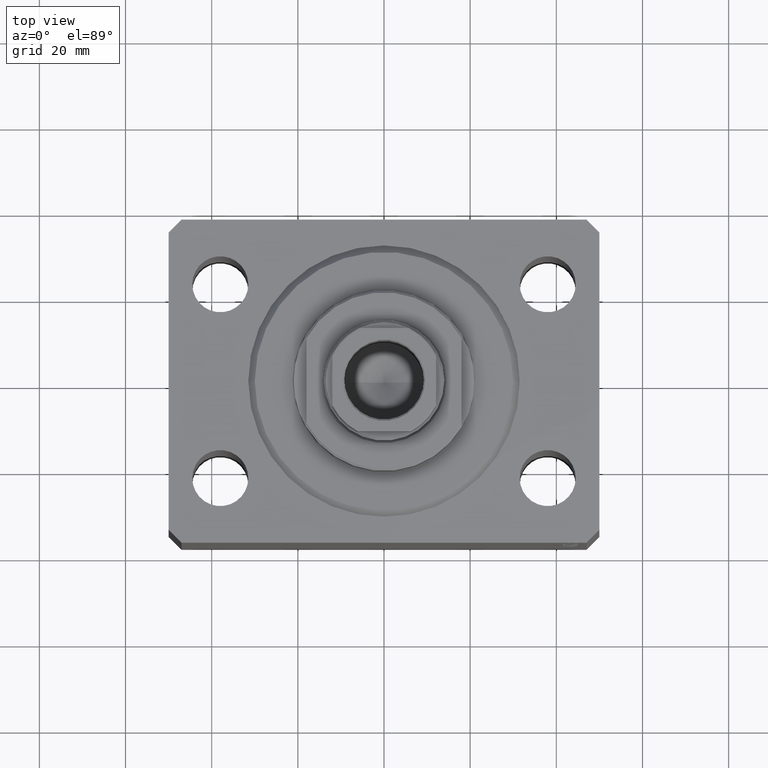
[diagram: clean part render]
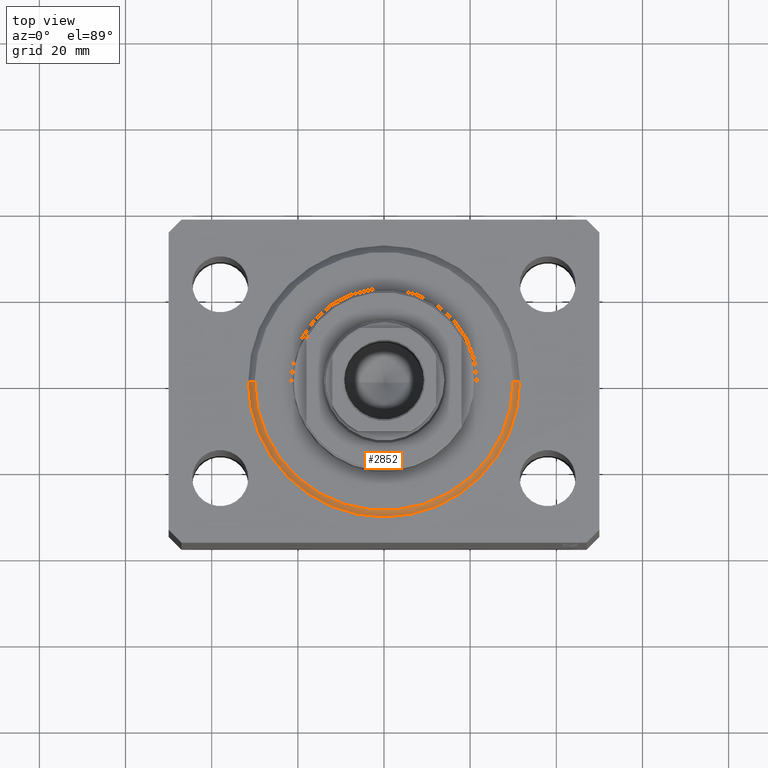
[diagram: same view with one face highlighted and labeled with its STEP entity id]
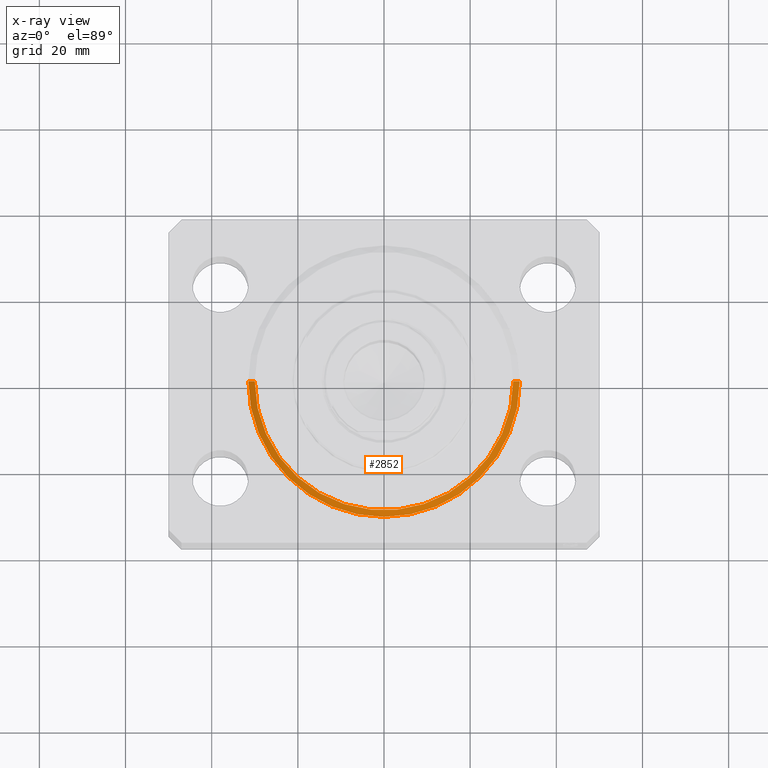
[diagram: x-ray of the same camera — body ghosted, the highlighted face saturated]
A machine part, top view. The second image highlights one B-rep face of the part: STEP entity #2852.
The next image is the same camera in x-ray: the body ghosted, the highlighted face saturated — about 0% of this face is hidden behind the body in this view.
In plain terms, the highlighted conical surface has half-angle 45 deg.
Its self-contained STEP definition (entity closure, byte-faithful):
#190 = CARTESIAN_POINT ( 'NONE',  ( -31.50000000000000000, 0.000000000000000000, 1.499999999999980460 ) ) ;
#1528 = VECTOR ( 'NONE', #28099, 1000.000000000000114 ) ;
#2852 = ADVANCED_FACE ( 'NONE', ( #43012 ), #21048, .T. ) ;
#5147 = DIRECTION ( 'NONE',  ( 1.000000000000000000, 0.000000000000000000, 0.000000000000000000 ) ) ;
#7482 = EDGE_CURVE ( 'NONE', #31337, #40910, #17456, .T. ) ;
#8334 = VECTOR ( 'NONE', #20802, 1000.000000000000114 ) ;
#8439 = CARTESIAN_POINT ( 'NONE',  ( 30.00000000000002132, 0.000000000000000000, 0.000000000000000000 ) ) ;
#9012 = CARTESIAN_POINT ( 'NONE',  ( -30.00000000000002132, 3.765788907378112117E-15, 0.000000000000000000 ) ) ;
#14193 = EDGE_LOOP ( 'NONE', ( #44306, #27255, #36139, #29661 ) ) ;
#14994 = EDGE_CURVE ( 'NONE', #19182, #22671, #31290, .T. ) ;
#15089 = CARTESIAN_POINT ( 'NONE',  ( 0.000000000000000000, 0.000000000000000000, 1.499999999999980460 ) ) ;
#17456 = CIRCLE ( 'NONE', #22479, 31.50000000000000000 ) ;
#18319 = EDGE_CURVE ( 'NONE', #19182, #40910, #37911, .T. ) ;
#19182 = VERTEX_POINT ( 'NONE', #8439 ) ;
#20802 = DIRECTION ( 'NONE',  ( 0.7071067811865474617, 0.000000000000000000, 0.7071067811865474617 ) ) ;
#21048 = CONICAL_SURFACE ( 'NONE', #25391, 31.50000000000000000, 0.7853981633974482790 ) ;
#21725 = DIRECTION ( 'NONE',  ( -0.000000000000000000, -0.000000000000000000, -1.000000000000000000 ) ) ;
#22402 = CARTESIAN_POINT ( 'NONE',  ( 0.000000000000000000, 0.000000000000000000, 0.000000000000000000 ) ) ;
#22479 = AXIS2_PLACEMENT_3D ( 'NONE', #26399, #29315, #30405 ) ;
#22671 = VERTEX_POINT ( 'NONE', #9012 ) ;
#23982 = CARTESIAN_POINT ( 'NONE',  ( 31.50000000000000000, 0.000000000000000000, 1.499999999999980460 ) ) ;
#24949 = LINE ( 'NONE', #25614, #1528 ) ;
#25391 = AXIS2_PLACEMENT_3D ( 'NONE', #15089, #29288, #5147 ) ;
#25614 = CARTESIAN_POINT ( 'NONE',  ( -31.50000000000000000, 3.857637417314162689E-15, 1.499999999999980460 ) ) ;
#26399 = CARTESIAN_POINT ( 'NONE',  ( 0.000000000000000000, 0.000000000000000000, 1.499999999999980460 ) ) ;
#27255 = ORIENTED_EDGE ( 'NONE', *, *, #14994, .F. ) ;
#27711 = AXIS2_PLACEMENT_3D ( 'NONE', #22402, #21725, #35443 ) ;
#28099 = DIRECTION ( 'NONE',  ( -0.7071067811865474617, 8.659560562354932858E-17, 0.7071067811865474617 ) ) ;
#29288 = DIRECTION ( 'NONE',  ( -0.000000000000000000, -0.000000000000000000, 1.000000000000000000 ) ) ;
#29315 = DIRECTION ( 'NONE',  ( -0.000000000000000000, -0.000000000000000000, 1.000000000000000000 ) ) ;
#29661 = ORIENTED_EDGE ( 'NONE', *, *, #7482, .F. ) ;
#30405 = DIRECTION ( 'NONE',  ( 1.000000000000000000, 0.000000000000000000, 0.000000000000000000 ) ) ;
#31290 = CIRCLE ( 'NONE', #27711, 30.00000000000002132 ) ;
#31337 = VERTEX_POINT ( 'NONE', #190 ) ;
#35443 = DIRECTION ( 'NONE',  ( 1.000000000000000000, 0.000000000000000000, 0.000000000000000000 ) ) ;
#36139 = ORIENTED_EDGE ( 'NONE', *, *, #18319, .T. ) ;
#37911 = LINE ( 'NONE', #23982, #8334 ) ;
#39356 = EDGE_CURVE ( 'NONE', #22671, #31337, #24949, .T. ) ;
#40910 = VERTEX_POINT ( 'NONE', #44363 ) ;
#43012 = FACE_OUTER_BOUND ( 'NONE', #14193, .T. ) ;
#44306 = ORIENTED_EDGE ( 'NONE', *, *, #39356, .F. ) ;
#44363 = CARTESIAN_POINT ( 'NONE',  ( 31.50000000000000000, 3.857637417314162689E-15, 1.499999999999980460 ) ) ;